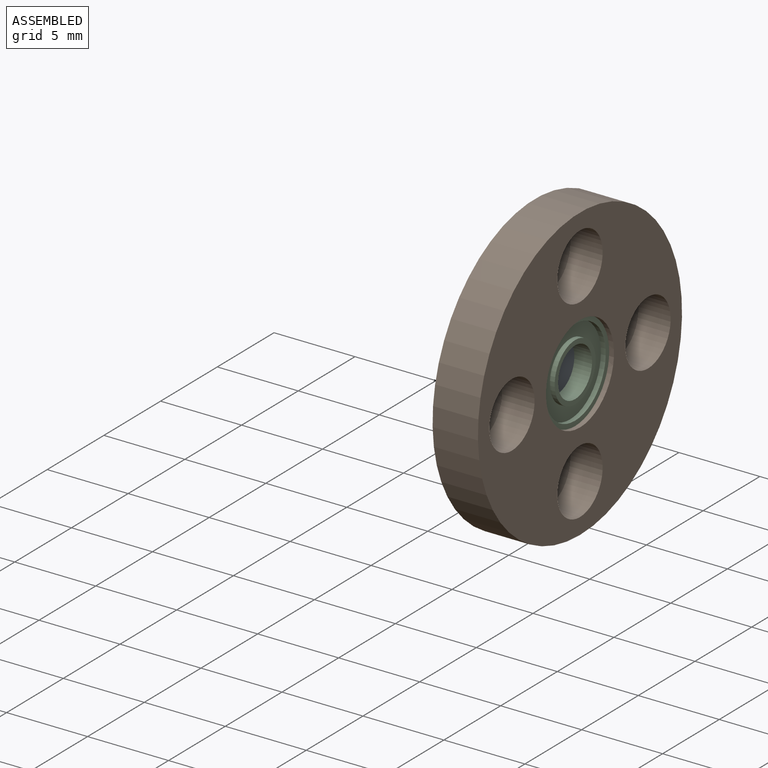
[diagram: assembled view]
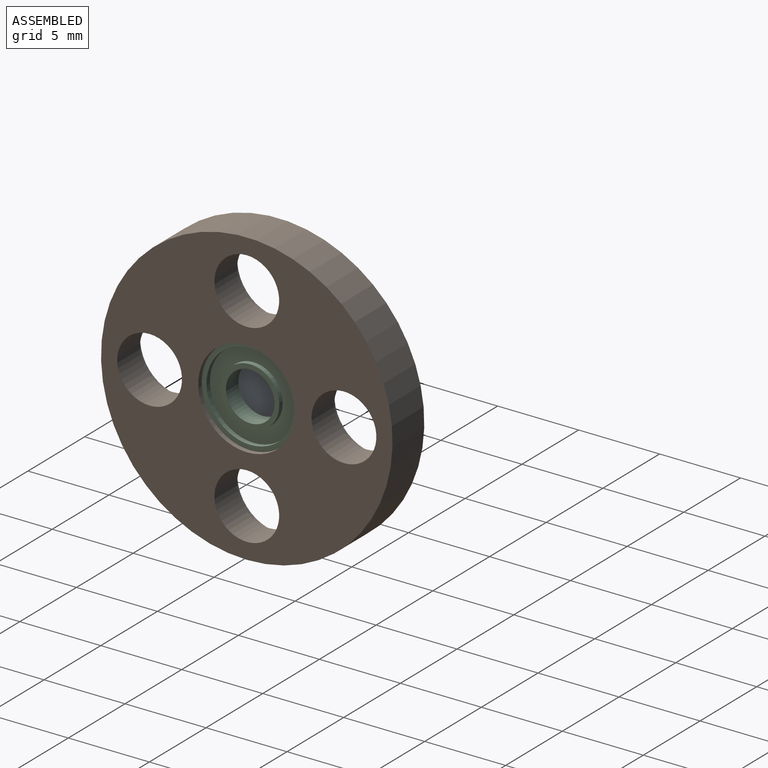
[diagram: assembled view, second angle]
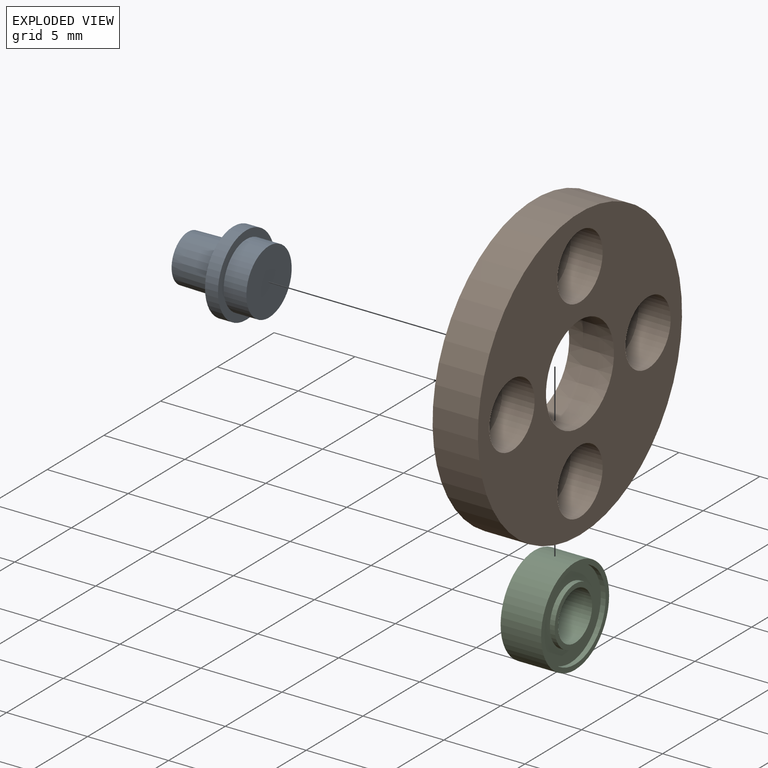
[diagram: exploded view]
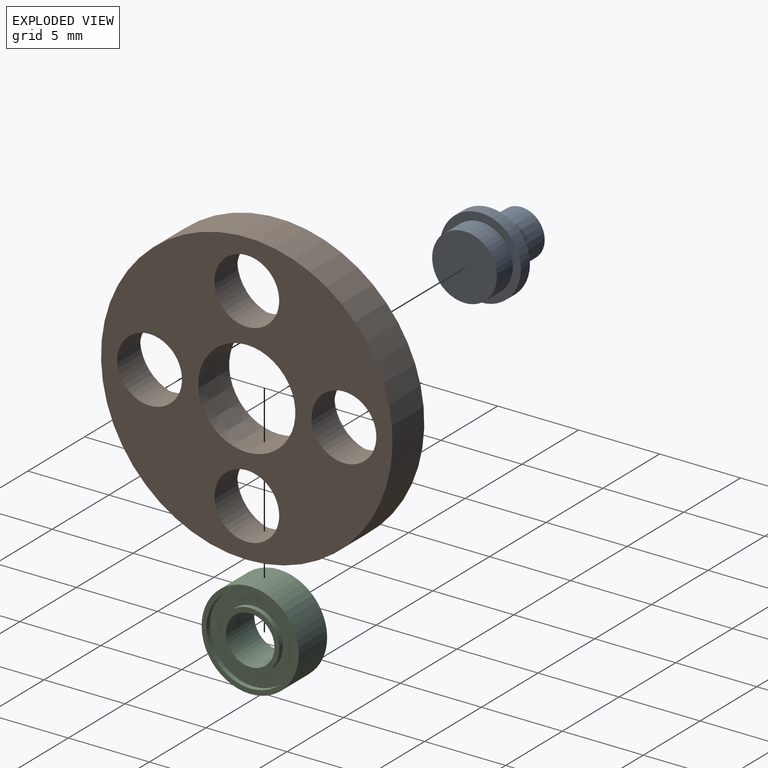
[diagram: exploded view, second angle]
ASSEMBLY  parts=3 mates=2
PART A: 7 faces, bbox 5x5x5 mm
  f0: cylinder r=2mm len=4mm, axis (1,0,0), area 17.6mm2, adj f1,f3
  f1: plane 4x4mm, normal (-1,0,0), area 12.6mm2, adj f0
  f2: cylinder r=2.5mm len=5mm, axis (1,0,0), area 12.6mm2, adj f3,f4
  f3: plane 5x5mm, normal (-1,0,0), area 7.1mm2, adj f0,f2
  f4: plane 5x5mm, normal (1,0,0), area 12.6mm2, adj f2,f5
  f5: cone r=1.5mm half-angle=1deg, axis (-1,0,0), area 26mm2, adj f4,f6
  f6: plane 2.9x2.9mm, normal (1,0,0), area 6.6mm2, adj f5
PART B: 16 faces, bbox 2.8x18x18 mm
  f0: cone r=3mm half-angle=1deg, axis (-1,0,0), area 53.2mm2, adj f2,f3
  f1: cylinder r=9mm len=18mm, axis (-1,0,0), area 158.3mm2, adj f2,f3
  f2: plane 18x18mm, normal (1,0,0), area 175.9mm2, adj f0,f1,f4,f7,f10,f13
  f3: plane 18x18mm, normal (-1,0,0), area 143.6mm2, adj f0,f1,f6,f9,f12,f15
  f4: cylinder r=2mm len=4mm, axis (-1,0,0), area 25.1mm2, adj f2,f5
  f5: plane 5.1x5.1mm, normal (-1,0,0), area 7.9mm2, adj f4,f6
  f6: cylinder r=2.55mm len=5.1mm, axis (-1,0,0), area 12.8mm2, adj f3,f5
  f7: cylinder r=2mm len=4mm, axis (-1,0,0), area 25.1mm2, adj f2,f8
  f8: plane 5.1x5.1mm, normal (-1,0,0), area 7.9mm2, adj f7,f9
  f9: cylinder r=2.55mm len=5.1mm, axis (-1,0,0), area 12.8mm2, adj f3,f8
  f10: cylinder r=2mm len=4mm, axis (-1,0,0), area 25.1mm2, adj f2,f11
  f11: plane 5.1x5.1mm, normal (-1,0,0), area 7.9mm2, adj f10,f12
  f12: cylinder r=2.55mm len=5.1mm, axis (-1,0,0), area 12.8mm2, adj f3,f11
  f13: cylinder r=2mm len=4mm, axis (-1,0,0), area 25.1mm2, adj f2,f14
  f14: plane 5.1x5.1mm, normal (-1,0,0), area 7.9mm2, adj f13,f15
  f15: cylinder r=2.55mm len=5.1mm, axis (-1,0,0), area 12.8mm2, adj f3,f14
PART C: 12 faces, bbox 2.5x6x6 mm
  f0: cylinder r=3mm len=6mm, axis (1,0,0), area 47.1mm2, adj f1,f11
  f1: plane 6x6mm, normal (-1,0,0), area 5.4mm2, adj f0,f2
  f2: cylinder r=2.7mm len=5.4mm, axis (1,0,0), area 5.1mm2, adj f1,f3
  f3: plane 5.4x5.4mm, normal (-1,0,0), area 12.7mm2, adj f2,f4
  f4: cylinder r=1.8mm len=3.6mm, axis (1,0,0), area 3.4mm2, adj f3,f5
  f5: plane 3.6x3.6mm, normal (-1,0,0), area 3.1mm2, adj f4,f6
  f6: cylinder r=1.5mm len=3mm, axis (1,0,0), area 23.6mm2, adj f5,f7
  f7: plane 3.6x3.6mm, normal (1,0,0), area 3.1mm2, adj f6,f8
  f8: cylinder r=1.8mm len=3.6mm, axis (1,0,0), area 3.4mm2, adj f7,f9
  f9: plane 5.4x5.4mm, normal (1,0,0), area 12.7mm2, adj f8,f10
  f10: cylinder r=2.7mm len=5.4mm, axis (1,0,0), area 5.1mm2, adj f9,f11
  f11: plane 6x6mm, normal (1,0,0), area 5.4mm2, adj f0,f10
PLACE A rot(axis=(0,1,0),180deg) t=(-3.8,0,0)mm
PLACE B at identity fixed
PLACE C t=(-0.15,0,0)mm
MATE revolute A.f0 <-> C.f0  axis (1,0,0) through (-1.4,0,0)mm
MATE fastened C.f0 <-> B.f0  axis (-1,0,0) through (-1.4,0,0)mm
